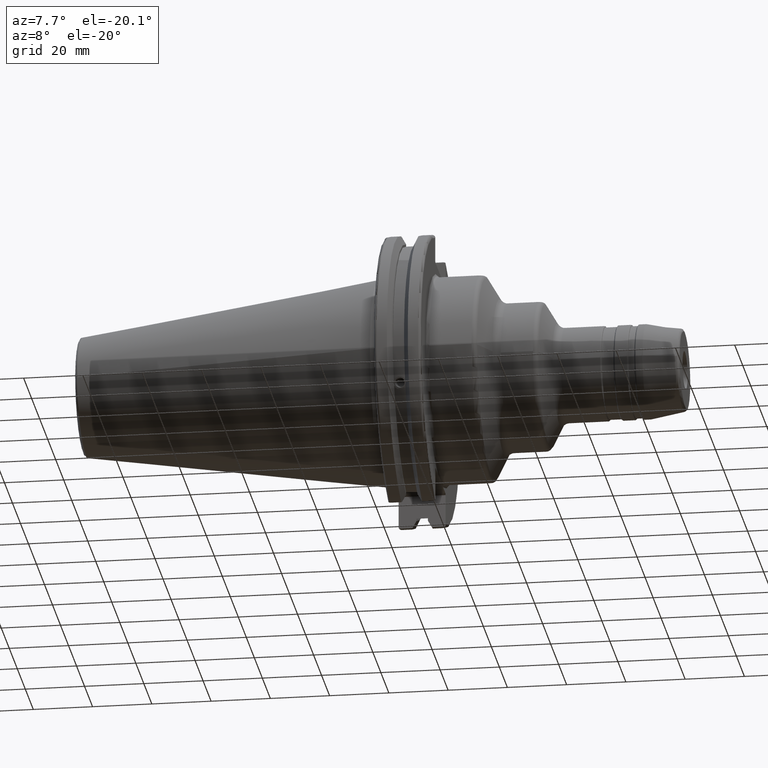
[diagram: clean part render]
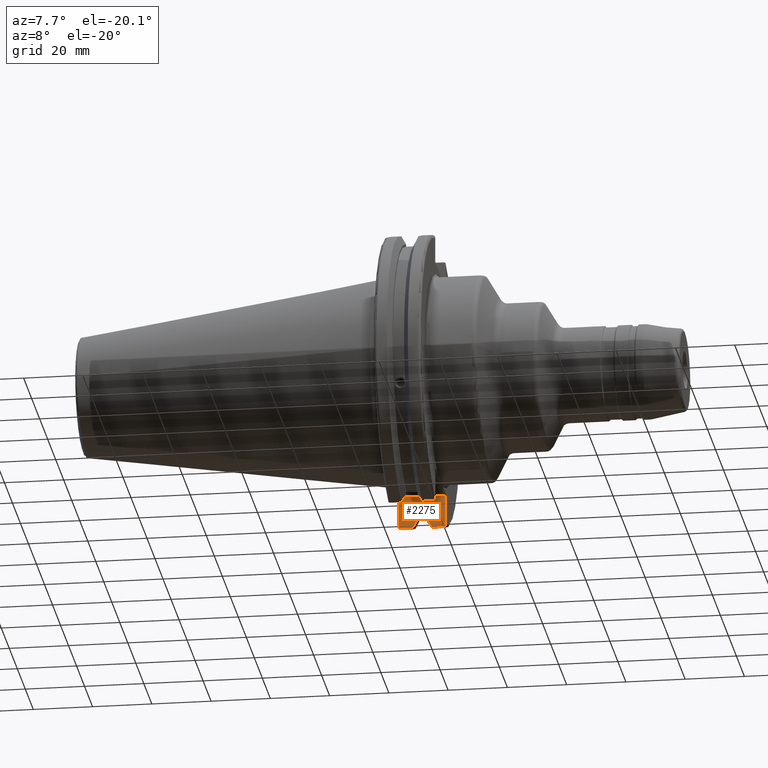
[diagram: same view with one face highlighted and labeled with its STEP entity id]
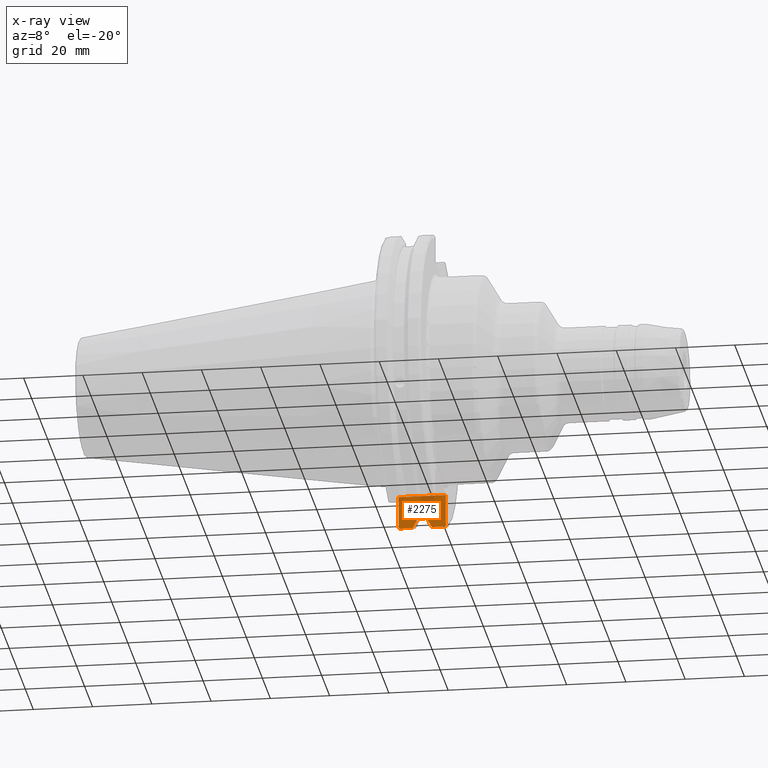
[diagram: x-ray of the same camera — body ghosted, the highlighted face saturated]
A machine part, auxiliary view. The second image highlights one B-rep face of the part: STEP entity #2275.
The next image is the same camera in x-ray: the body ghosted, the highlighted face saturated — about 7% of this face is hidden behind the body in this view.
In plain terms, the highlighted planar face has unit normal (0, 1, 0).
Its self-contained STEP definition (entity closure, byte-faithful):
#19=(
BOUNDED_CURVE()
B_SPLINE_CURVE(2,(#4173,#4174,#4175),.UNSPECIFIED.,.F.,.F.)
B_SPLINE_CURVE_WITH_KNOTS((3,3),(0.,0.275823910674652),.UNSPECIFIED.)
CURVE()
GEOMETRIC_REPRESENTATION_ITEM()
RATIONAL_B_SPLINE_CURVE((1.,1.00038235573731,1.00012873636533))
REPRESENTATION_ITEM('')
);
#24=(
BOUNDED_CURVE()
B_SPLINE_CURVE(2,(#4335,#4336,#4337),.UNSPECIFIED.,.F.,.F.)
B_SPLINE_CURVE_WITH_KNOTS((3,3),(0.0558332664532001,0.331657177124504),
 .UNSPECIFIED.)
CURVE()
GEOMETRIC_REPRESENTATION_ITEM()
RATIONAL_B_SPLINE_CURVE((1.00012873636632,1.00038235574022,1.))
REPRESENTATION_ITEM('')
);
#46=PLANE('',#2576);
#135=B_SPLINE_CURVE_WITH_KNOTS('',3,(#4290,#4291,#4292,#4293,#4294,#4295),
 .UNSPECIFIED.,.F.,.F.,(4,2,4),(0.452859340315922,0.491741138916218,0.506051994111223),
 .UNSPECIFIED.);
#138=B_SPLINE_CURVE_WITH_KNOTS('',3,(#4328,#4329,#4330,#4331,#4332,#4333),
 .UNSPECIFIED.,.F.,.F.,(4,2,4),(0.0976892167532858,0.112000071948292,0.150881870548587),
 .UNSPECIFIED.);
#240=FACE_OUTER_BOUND('',#368,.T.);
#368=EDGE_LOOP('',(#1928,#1929,#1930,#1931,#1932,#1933,#1934,#1935,#1936,
#1937,#1938,#1939));
#454=LINE('',#4194,#561);
#455=LINE('',#4198,#562);
#456=LINE('',#4202,#563);
#467=LINE('',#4264,#574);
#473=LINE('',#4317,#580);
#475=LINE('',#4325,#582);
#476=LINE('',#4326,#583);
#477=LINE('',#4334,#584);
#561=VECTOR('',#3095,10.);
#562=VECTOR('',#3100,10.);
#563=VECTOR('',#3105,10.);
#574=VECTOR('',#3168,10.);
#580=VECTOR('',#3188,10.);
#582=VECTOR('',#3192,10.);
#583=VECTOR('',#3193,10.);
#584=VECTOR('',#3194,10.);
#986=VERTEX_POINT('',#4170);
#987=VERTEX_POINT('',#4172);
#992=VERTEX_POINT('',#4192);
#993=VERTEX_POINT('',#4196);
#994=VERTEX_POINT('',#4200);
#1018=VERTEX_POINT('',#4261);
#1019=VERTEX_POINT('',#4263);
#1027=VERTEX_POINT('',#4287);
#1028=VERTEX_POINT('',#4289);
#1031=VERTEX_POINT('',#4316);
#1033=VERTEX_POINT('',#4324);
#1034=VERTEX_POINT('',#4327);
#1296=EDGE_CURVE('',#986,#987,#19,.T.);
#1303=EDGE_CURVE('',#992,#986,#454,.T.);
#1305=EDGE_CURVE('',#993,#992,#455,.T.);
#1307=EDGE_CURVE('',#994,#993,#456,.T.);
#1336=EDGE_CURVE('',#1018,#1019,#467,.T.);
#1346=EDGE_CURVE('',#1027,#1028,#135,.T.);
#1350=EDGE_CURVE('',#1028,#1031,#473,.T.);
#1353=EDGE_CURVE('',#1033,#1027,#475,.T.);
#1354=EDGE_CURVE('',#1019,#1033,#476,.T.);
#1355=EDGE_CURVE('',#1034,#1018,#138,.T.);
#1356=EDGE_CURVE('',#987,#1034,#477,.T.);
#1357=EDGE_CURVE('',#1031,#994,#24,.T.);
#1928=ORIENTED_EDGE('',*,*,#1346,.F.);
#1929=ORIENTED_EDGE('',*,*,#1353,.F.);
#1930=ORIENTED_EDGE('',*,*,#1354,.F.);
#1931=ORIENTED_EDGE('',*,*,#1336,.F.);
#1932=ORIENTED_EDGE('',*,*,#1355,.F.);
#1933=ORIENTED_EDGE('',*,*,#1356,.F.);
#1934=ORIENTED_EDGE('',*,*,#1296,.F.);
#1935=ORIENTED_EDGE('',*,*,#1303,.F.);
#1936=ORIENTED_EDGE('',*,*,#1305,.F.);
#1937=ORIENTED_EDGE('',*,*,#1307,.F.);
#1938=ORIENTED_EDGE('',*,*,#1357,.F.);
#1939=ORIENTED_EDGE('',*,*,#1350,.F.);
#2275=ADVANCED_FACE('',(#240),#46,.F.);
#2576=AXIS2_PLACEMENT_3D('',#4323,#3190,#3191);
#3095=DIRECTION('',(0.,0.,-1.));
#3100=DIRECTION('',(-1.,0.,0.));
#3105=DIRECTION('',(0.,0.,1.));
#3168=DIRECTION('',(0.,0.,1.));
#3188=DIRECTION('',(-1.,2.63163976207444E-16,0.));
#3190=DIRECTION('center_axis',(2.63163976207444E-16,1.,0.));
#3191=DIRECTION('ref_axis',(1.,-2.63163976207444E-16,0.));
#3192=DIRECTION('',(0.,0.,-1.));
#3193=DIRECTION('',(1.,-2.63163976207444E-16,0.));
#3194=DIRECTION('',(-1.,2.63163976207444E-16,0.));
#4170=CARTESIAN_POINT('',(9.2191,12.95,-44.5791147973604));
#4172=CARTESIAN_POINT('',(7.88638960562424,12.95,-46.9780755322918));
#4173=CARTESIAN_POINT('Ctrl Pts',(9.2191,12.95,-44.5791147973604));
#4174=CARTESIAN_POINT('Ctrl Pts',(8.57020449055827,12.95,-45.7494966802153));
#4175=CARTESIAN_POINT('Ctrl Pts',(7.88638960562424,12.95,-46.9780755322918));
#4192=CARTESIAN_POINT('',(9.2191,12.95,-43.7678716897452));
#4194=CARTESIAN_POINT('',(9.2191,12.95,-17.653));
#4196=CARTESIAN_POINT('',(13.0491,12.95,-43.7678716897452));
#4198=CARTESIAN_POINT('',(11.1341,12.95,-43.7678716897452));
#4200=CARTESIAN_POINT('',(13.0491,12.95,-44.5791147973605));
#4202=CARTESIAN_POINT('',(13.0491,12.95,-17.653));
#4261=CARTESIAN_POINT('',(3.175,12.95,-46.4407434937254));
#4263=CARTESIAN_POINT('',(3.175,12.95,-35.806));
#4264=CARTESIAN_POINT('',(3.175,12.95,-17.653));
#4287=CARTESIAN_POINT('',(19.05,12.95,-46.4407434937254));
#4289=CARTESIAN_POINT('',(18.9055020570566,12.95,-46.9780755322918));
#4290=CARTESIAN_POINT('Ctrl Pts',(19.05,12.95,-46.4407434937254));
#4291=CARTESIAN_POINT('Ctrl Pts',(19.05,12.95,-46.5703494890597));
#4292=CARTESIAN_POINT('Ctrl Pts',(19.0204646992875,12.95,-46.7230464903732));
#4293=CARTESIAN_POINT('Ctrl Pts',(18.9538432708766,12.95,-46.887363294568));
#4294=CARTESIAN_POINT('Ctrl Pts',(18.9315844351616,12.95,-46.9333752207329));
#4295=CARTESIAN_POINT('Ctrl Pts',(18.9055020570566,12.95,-46.9780755322918));
#4316=CARTESIAN_POINT('',(14.3818103943757,12.95,-46.9780755322918));
#4317=CARTESIAN_POINT('',(16.8551045170244,12.95,-46.9780755322918));
#4323=CARTESIAN_POINT('Origin',(3.17499999999999,12.95,-35.306));
#4324=CARTESIAN_POINT('',(19.05,12.95,-35.806));
#4325=CARTESIAN_POINT('',(19.05,12.95,-17.653));
#4326=CARTESIAN_POINT('',(10.63125,12.95,-35.806));
#4327=CARTESIAN_POINT('',(3.31949794294344,12.95,-46.9780755322918));
#4328=CARTESIAN_POINT('Ctrl Pts',(3.31949794294344,12.95,-46.9780755322918));
#4329=CARTESIAN_POINT('Ctrl Pts',(3.29341556483839,12.95,-46.9333752207329));
#4330=CARTESIAN_POINT('Ctrl Pts',(3.27115672912336,12.95,-46.887363294568));
#4331=CARTESIAN_POINT('Ctrl Pts',(3.20453530071253,12.95,-46.7230464903732));
#4332=CARTESIAN_POINT('Ctrl Pts',(3.175,12.95,-46.5703494890597));
#4333=CARTESIAN_POINT('Ctrl Pts',(3.175,12.95,-46.4407434937254));
#4334=CARTESIAN_POINT('',(5.39149548297563,12.95,-46.9780755322918));
#4335=CARTESIAN_POINT('Ctrl Pts',(14.3818103943757,12.95,-46.9780755322918));
#4336=CARTESIAN_POINT('Ctrl Pts',(13.6979955094851,12.95,-45.7494966802933));
#4337=CARTESIAN_POINT('Ctrl Pts',(13.0491,12.95,-44.5791147973604));